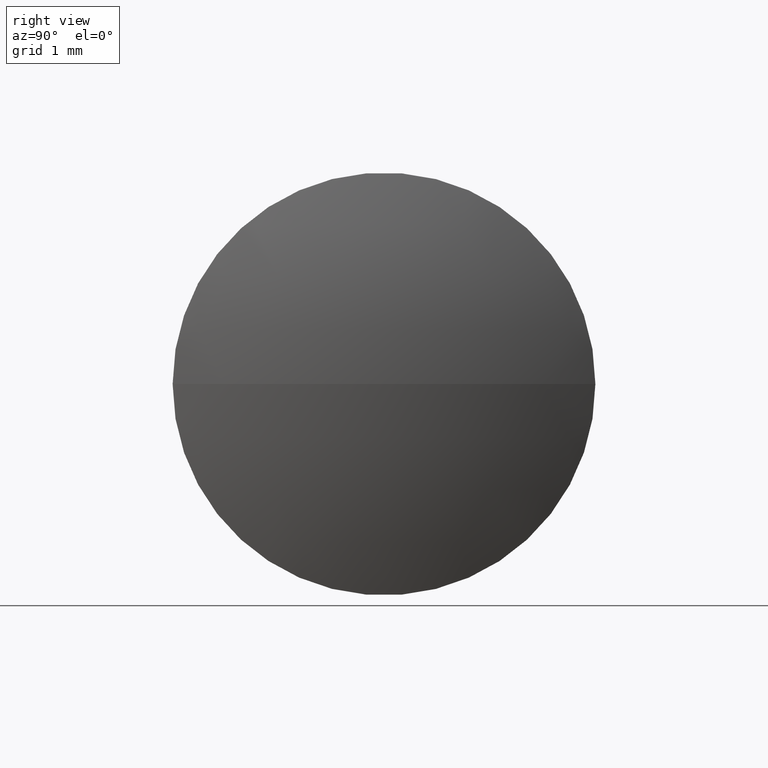
[diagram: clean part render]
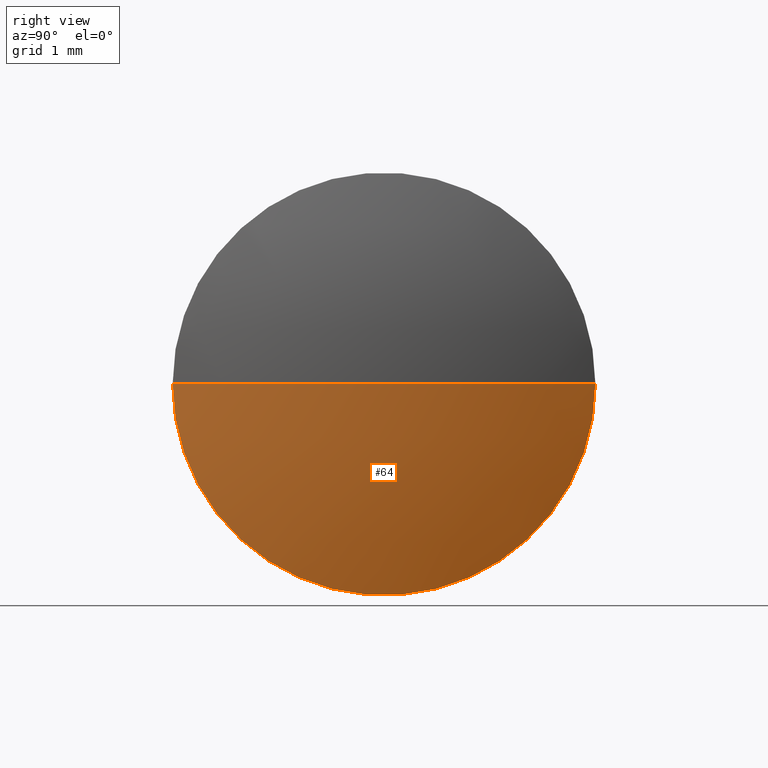
[diagram: same view with one face highlighted and labeled with its STEP entity id]
A machine part, right view. The second image highlights one B-rep face of the part: STEP entity #64.
In plain terms, the highlighted spherical surface has radius 9.0787 mm.
Its self-contained STEP definition (entity closure, byte-faithful):
#6 = DIRECTION ( 'NONE',  ( 9.553849718675432400E-016, -1.000000000000000000, 0.0000000000000000000 ) ) ;
#13 = CARTESIAN_POINT ( 'NONE',  ( 22.91320241020381200, 11.48412513980631800, 0.0000000000000000000 ) ) ;
#16 = DIRECTION ( 'NONE',  ( 1.000000000000000000, 1.031215386547264900E-015, -0.0000000000000000000 ) ) ;
#24 = ORIENTED_EDGE ( 'NONE', *, *, #269, .T. ) ;
#27 = CIRCLE ( 'NONE', #129, 9.078662146976460800 ) ;
#38 = CARTESIAN_POINT ( 'NONE',  ( 22.91320241020381600, 8.484124107103731700, 0.0000000000000000000 ) ) ;
#64 = ADVANCED_FACE ( 'NONE', ( #200 ), #70, .T. ) ;
#65 = AXIS2_PLACEMENT_3D ( 'NONE', #101, #267, #6 ) ;
#66 = CARTESIAN_POINT ( 'NONE',  ( 23.42319487147487300, 11.48412513980632200, 0.0000000000000000000 ) ) ;
#70 = SPHERICAL_SURFACE ( 'NONE', #65, 9.078662146976460800 ) ;
#95 = VERTEX_POINT ( 'NONE', #38 ) ;
#101 = CARTESIAN_POINT ( 'NONE',  ( 14.34453272449841200, 11.48412513980631300, 0.0000000000000000000 ) ) ;
#109 = EDGE_CURVE ( 'NONE', #188, #262, #181, .T. ) ;
#112 = CARTESIAN_POINT ( 'NONE',  ( 22.91320241020380900, 14.48412617250891000, -3.673941662137976700E-016 ) ) ;
#118 = CIRCLE ( 'NONE', #194, 3.000001032702591000 ) ;
#129 = AXIS2_PLACEMENT_3D ( 'NONE', #204, #158, #156 ) ;
#155 = DIRECTION ( 'NONE',  ( -1.156481919217246500E-015, 1.000000000000000000, 0.0000000000000000000 ) ) ;
#156 = DIRECTION ( 'NONE',  ( 1.000000000000000000, 0.0000000000000000000, 0.0000000000000000000 ) ) ;
#158 = DIRECTION ( 'NONE',  ( 0.0000000000000000000, 0.0000000000000000000, 1.000000000000000000 ) ) ;
#181 = CIRCLE ( 'NONE', #297, 9.078662146976460800 ) ;
#183 = DIRECTION ( 'NONE',  ( 0.0000000000000000000, 1.000000000000000000, -1.224646799147353000E-016 ) ) ;
#184 = ORIENTED_EDGE ( 'NONE', *, *, #187, .F. ) ;
#187 = EDGE_CURVE ( 'NONE', #95, #262, #27, .T. ) ;
#188 = VERTEX_POINT ( 'NONE', #112 ) ;
#194 = AXIS2_PLACEMENT_3D ( 'NONE', #13, #16, #155 ) ;
#200 = FACE_OUTER_BOUND ( 'NONE', #205, .T. ) ;
#204 = CARTESIAN_POINT ( 'NONE',  ( 14.34453272449841200, 11.48412513980631300, 0.0000000000000000000 ) ) ;
#205 = EDGE_LOOP ( 'NONE', ( #24, #214, #184 ) ) ;
#214 = ORIENTED_EDGE ( 'NONE', *, *, #109, .T. ) ;
#222 = CARTESIAN_POINT ( 'NONE',  ( 14.34453272449841200, 11.48412513980631300, 0.0000000000000000000 ) ) ;
#262 = VERTEX_POINT ( 'NONE', #66 ) ;
#267 = DIRECTION ( 'NONE',  ( 0.0000000000000000000, -0.0000000000000000000, -1.000000000000000000 ) ) ;
#269 = EDGE_CURVE ( 'NONE', #95, #188, #118, .T. ) ;
#294 = DIRECTION ( 'NONE',  ( 1.262874622366608600E-031, -1.224646799147353200E-016, -1.000000000000000000 ) ) ;
#297 = AXIS2_PLACEMENT_3D ( 'NONE', #222, #294, #183 ) ;